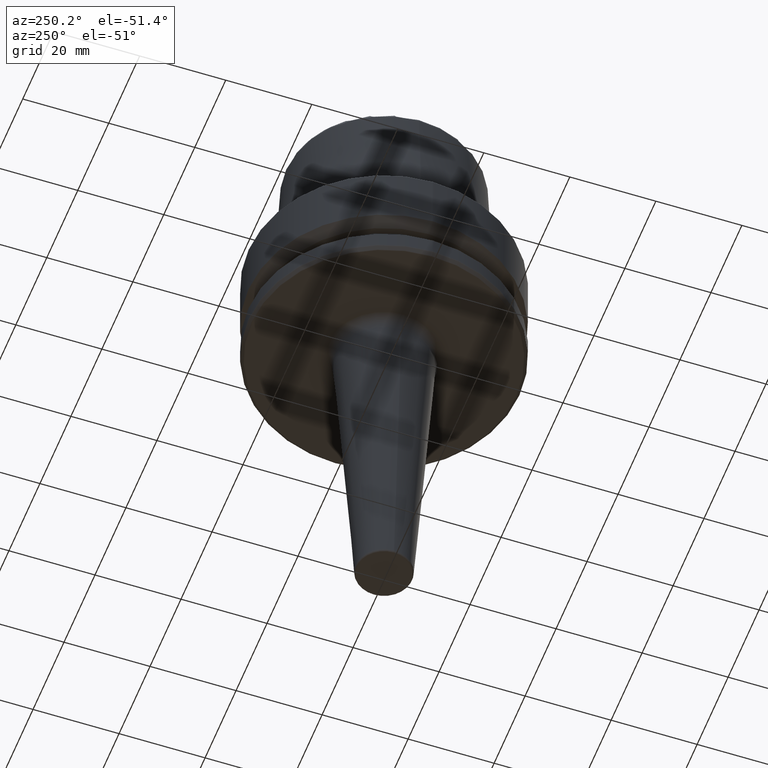
[diagram: clean part render]
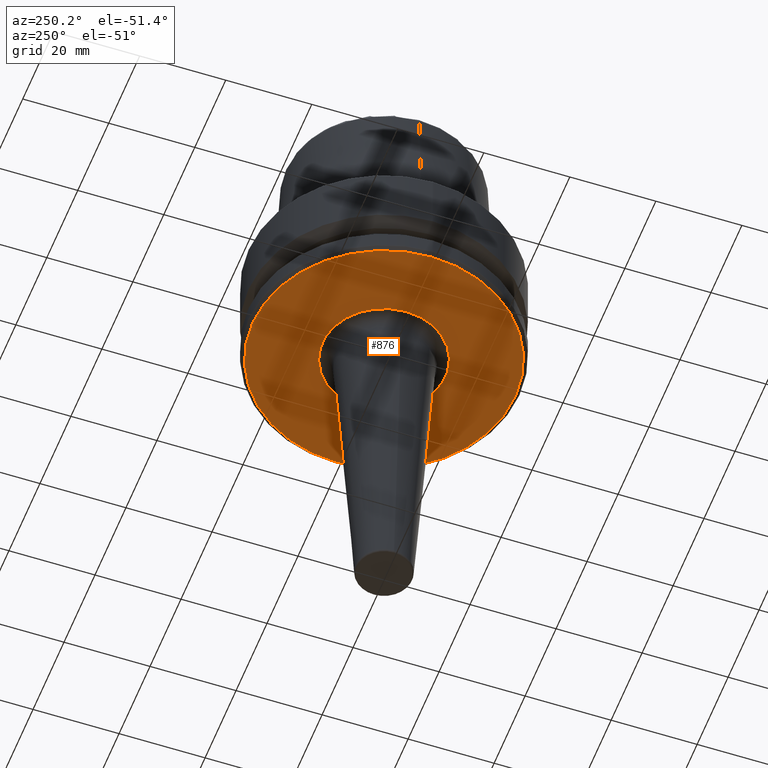
[diagram: same view with one face highlighted and labeled with its STEP entity id]
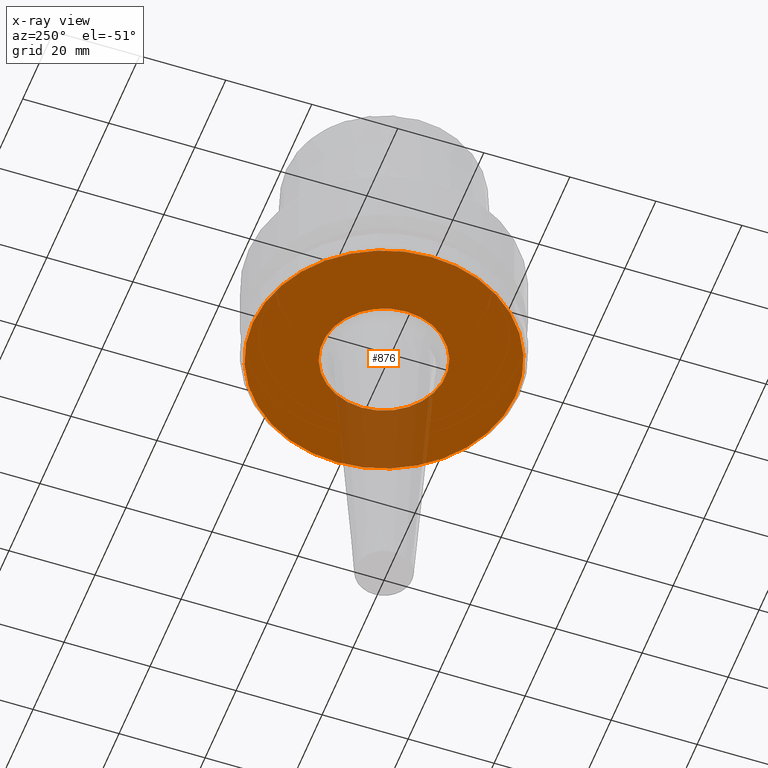
[diagram: x-ray of the same camera — body ghosted, the highlighted face saturated]
A machine part, auxiliary view. The second image highlights one B-rep face of the part: STEP entity #876.
The next image is the same camera in x-ray: the body ghosted, the highlighted face saturated — about 15% of this face is hidden behind the body in this view.
In plain terms, the highlighted planar face has unit normal (0, -0, 1).
Its self-contained STEP definition (entity closure, byte-faithful):
#12 = VERTEX_POINT ( 'NONE', #912 ) ;
#20 = AXIS2_PLACEMENT_3D ( 'NONE', #959, #391, #778 ) ;
#46 = EDGE_LOOP ( 'NONE', ( #798, #364 ) ) ;
#123 = CIRCLE ( 'NONE', #161, 14.30665927567457500 ) ;
#157 = CARTESIAN_POINT ( 'NONE',  ( 0.0000000000000000000, 30.53431457505076800, -26.00000000000001100 ) ) ;
#161 = AXIS2_PLACEMENT_3D ( 'NONE', #305, #310, #888 ) ;
#164 = VERTEX_POINT ( 'NONE', #1191 ) ;
#188 = CARTESIAN_POINT ( 'NONE',  ( 14.30665927567457500, 0.0000000000000000000, -26.00000000000001100 ) ) ;
#190 = DIRECTION ( 'NONE',  ( 1.000000000000000000, 0.0000000000000000000, 0.0000000000000000000 ) ) ;
#223 = ORIENTED_EDGE ( 'NONE', *, *, #609, .T. ) ;
#250 = ORIENTED_EDGE ( 'NONE', *, *, #840, .T. ) ;
#305 = CARTESIAN_POINT ( 'NONE',  ( 0.0000000000000000000, 0.0000000000000000000, -26.00000000000001100 ) ) ;
#310 = DIRECTION ( 'NONE',  ( -0.0000000000000000000, -0.0000000000000000000, 1.000000000000000000 ) ) ;
#336 = AXIS2_PLACEMENT_3D ( 'NONE', #950, #557, #1251 ) ;
#364 = ORIENTED_EDGE ( 'NONE', *, *, #585, .F. ) ;
#377 = EDGE_CURVE ( 'NONE', #384, #164, #709, .T. ) ;
#384 = VERTEX_POINT ( 'NONE', #1233 ) ;
#391 = DIRECTION ( 'NONE',  ( -0.0000000000000000000, -0.0000000000000000000, 1.000000000000000000 ) ) ;
#441 = PLANE ( 'NONE',  #851 ) ;
#557 = DIRECTION ( 'NONE',  ( -0.0000000000000000000, -0.0000000000000000000, 1.000000000000000000 ) ) ;
#574 = DIRECTION ( 'NONE',  ( -0.0000000000000000000, -0.0000000000000000000, 1.000000000000000000 ) ) ;
#585 = EDGE_CURVE ( 'NONE', #164, #384, #753, .T. ) ;
#609 = EDGE_CURVE ( 'NONE', #12, #1104, #123, .T. ) ;
#709 = CIRCLE ( 'NONE', #1043, 30.53431457505076800 ) ;
#748 = FACE_OUTER_BOUND ( 'NONE', #46, .T. ) ;
#753 = CIRCLE ( 'NONE', #20, 30.53431457505076800 ) ;
#778 = DIRECTION ( 'NONE',  ( 1.000000000000000000, 0.0000000000000000000, 0.0000000000000000000 ) ) ;
#798 = ORIENTED_EDGE ( 'NONE', *, *, #377, .F. ) ;
#820 = CIRCLE ( 'NONE', #336, 14.30665927567457500 ) ;
#840 = EDGE_CURVE ( 'NONE', #1104, #12, #820, .T. ) ;
#851 = AXIS2_PLACEMENT_3D ( 'NONE', #157, #1237, #1152 ) ;
#876 = ADVANCED_FACE ( 'NONE', ( #1061, #748 ), #441, .F. ) ;
#888 = DIRECTION ( 'NONE',  ( 1.000000000000000000, 0.0000000000000000000, 0.0000000000000000000 ) ) ;
#912 = CARTESIAN_POINT ( 'NONE',  ( -14.30665927567457500, 1.752060448844665700E-015, -26.00000000000001100 ) ) ;
#950 = CARTESIAN_POINT ( 'NONE',  ( 0.0000000000000000000, 0.0000000000000000000, -26.00000000000001100 ) ) ;
#959 = CARTESIAN_POINT ( 'NONE',  ( 0.0000000000000000000, 0.0000000000000000000, -26.00000000000001100 ) ) ;
#1032 = CARTESIAN_POINT ( 'NONE',  ( 0.0000000000000000000, 0.0000000000000000000, -26.00000000000001100 ) ) ;
#1043 = AXIS2_PLACEMENT_3D ( 'NONE', #1032, #574, #190 ) ;
#1061 = FACE_BOUND ( 'NONE', #1157, .T. ) ;
#1104 = VERTEX_POINT ( 'NONE', #188 ) ;
#1152 = DIRECTION ( 'NONE',  ( 1.000000000000000000, 0.0000000000000000000, 0.0000000000000000000 ) ) ;
#1157 = EDGE_LOOP ( 'NONE', ( #250, #223 ) ) ;
#1191 = CARTESIAN_POINT ( 'NONE',  ( -30.53431457505076800, 3.756694181974139400E-015, -26.00000000000001100 ) ) ;
#1233 = CARTESIAN_POINT ( 'NONE',  ( 30.53431457505076800, 0.0000000000000000000, -26.00000000000001100 ) ) ;
#1237 = DIRECTION ( 'NONE',  ( 0.0000000000000000000, -0.0000000000000000000, 1.000000000000000000 ) ) ;
#1251 = DIRECTION ( 'NONE',  ( 1.000000000000000000, 0.0000000000000000000, 0.0000000000000000000 ) ) ;